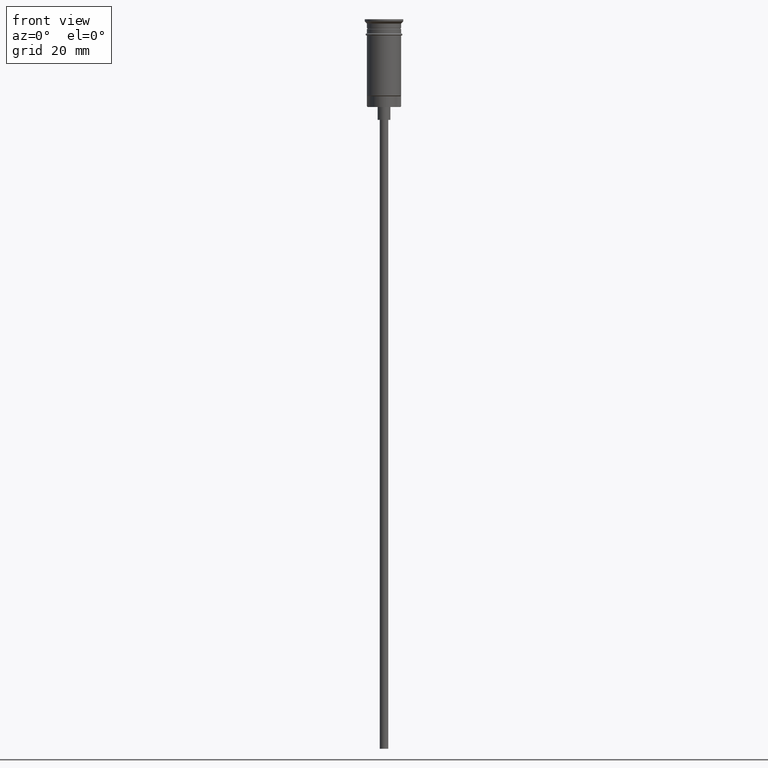
[diagram: clean part render]
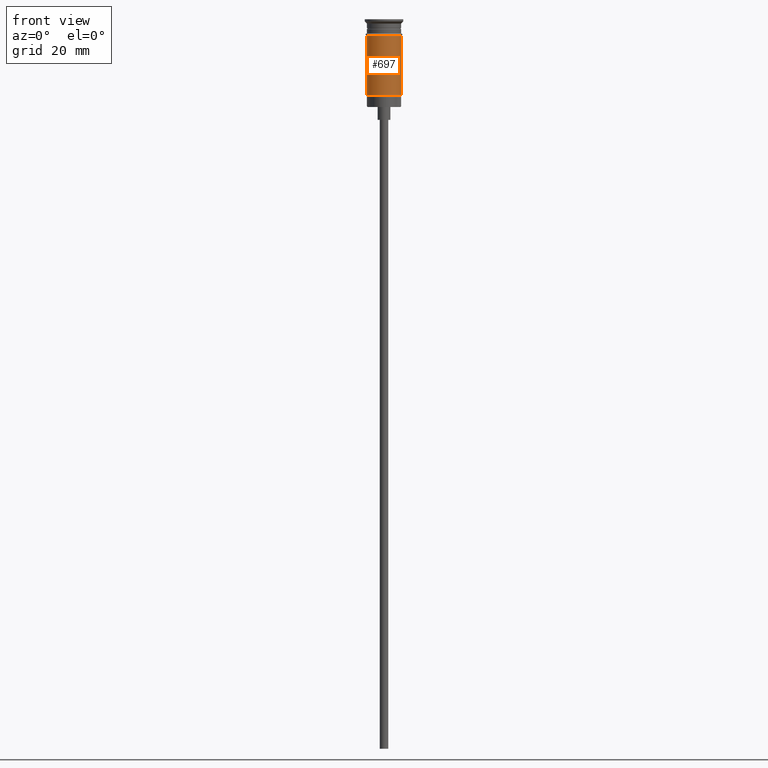
[diagram: same view with one face highlighted and labeled with its STEP entity id]
A machine part, front view. The second image highlights one B-rep face of the part: STEP entity #697.
In plain terms, the highlighted cylindrical surface (edge-blend (fillet) strip) has radius 4 mm, axis along (-0, -0, 1).
Its self-contained STEP definition (entity closure, byte-faithful):
#46 = CIRCLE ( 'NONE', #770, 4.000000000000000000 ) ;
#56 = DIRECTION ( 'NONE',  ( -0.000000000000000000, -0.000000000000000000, 1.000000000000000000 ) ) ;
#133 = DIRECTION ( 'NONE',  ( -1.000000000000000000, 0.000000000000000000, 0.000000000000000000 ) ) ;
#134 = VERTEX_POINT ( 'NONE', #1245 ) ;
#153 = VERTEX_POINT ( 'NONE', #1065 ) ;
#182 = CARTESIAN_POINT ( 'NONE',  ( 0.000000000000000000, 0.000000000000000000, 0.000000000000000000 ) ) ;
#220 = AXIS2_PLACEMENT_3D ( 'NONE', #182, #56, #317 ) ;
#237 = CARTESIAN_POINT ( 'NONE',  ( 0.000000000000000000, 0.000000000000000000, -3.799999999999998490 ) ) ;
#240 = EDGE_LOOP ( 'NONE', ( #1251, #664, #255, #620 ) ) ;
#255 = ORIENTED_EDGE ( 'NONE', *, *, #326, .T. ) ;
#293 = LINE ( 'NONE', #1035, #1498 ) ;
#311 = EDGE_CURVE ( 'NONE', #153, #1029, #673, .T. ) ;
#314 = DIRECTION ( 'NONE',  ( -0.000000000000000000, -0.000000000000000000, 1.000000000000000000 ) ) ;
#317 = DIRECTION ( 'NONE',  ( 1.000000000000000000, 0.000000000000000000, 0.000000000000000000 ) ) ;
#326 = EDGE_CURVE ( 'NONE', #134, #475, #293, .T. ) ;
#395 = VECTOR ( 'NONE', #1156, 1000.000000000000000 ) ;
#475 = VERTEX_POINT ( 'NONE', #607 ) ;
#596 = EDGE_CURVE ( 'NONE', #1029, #475, #1463, .T. ) ;
#604 = EDGE_CURVE ( 'NONE', #153, #134, #46, .T. ) ;
#607 = CARTESIAN_POINT ( 'NONE',  ( 4.000000000000000000, 0.000000000000000000, -3.799999999999998490 ) ) ;
#620 = ORIENTED_EDGE ( 'NONE', *, *, #596, .F. ) ;
#664 = ORIENTED_EDGE ( 'NONE', *, *, #604, .T. ) ;
#673 = LINE ( 'NONE', #680, #395 ) ;
#680 = CARTESIAN_POINT ( 'NONE',  ( -4.000000000000000000, 4.898587196589412829E-16, 0.000000000000000000 ) ) ;
#697 = ADVANCED_FACE ( 'NONE', ( #1388 ), #1425, .T. ) ;
#734 = DIRECTION ( 'NONE',  ( 1.000000000000000000, 0.000000000000000000, 0.000000000000000000 ) ) ;
#770 = AXIS2_PLACEMENT_3D ( 'NONE', #880, #1354, #133 ) ;
#880 = CARTESIAN_POINT ( 'NONE',  ( 0.000000000000000000, 0.000000000000000000, -17.79999999999998295 ) ) ;
#1029 = VERTEX_POINT ( 'NONE', #1113 ) ;
#1035 = CARTESIAN_POINT ( 'NONE',  ( 4.000000000000000000, 0.000000000000000000, 0.000000000000000000 ) ) ;
#1065 = CARTESIAN_POINT ( 'NONE',  ( -3.999999999999997335, 0.000000000000000000, -17.79999999999998295 ) ) ;
#1102 = DIRECTION ( 'NONE',  ( -0.000000000000000000, -0.000000000000000000, 1.000000000000000000 ) ) ;
#1113 = CARTESIAN_POINT ( 'NONE',  ( -4.000000000000000000, 4.898587196589412829E-16, -3.799999999999998490 ) ) ;
#1156 = DIRECTION ( 'NONE',  ( -0.000000000000000000, -0.000000000000000000, 1.000000000000000000 ) ) ;
#1245 = CARTESIAN_POINT ( 'NONE',  ( 4.000000000000000000, 4.898587196589412829E-16, -17.79999999999998295 ) ) ;
#1251 = ORIENTED_EDGE ( 'NONE', *, *, #311, .F. ) ;
#1354 = DIRECTION ( 'NONE',  ( -0.000000000000000000, -0.000000000000000000, 1.000000000000000000 ) ) ;
#1360 = AXIS2_PLACEMENT_3D ( 'NONE', #237, #1102, #734 ) ;
#1388 = FACE_OUTER_BOUND ( 'NONE', #240, .T. ) ;
#1425 = CYLINDRICAL_SURFACE ( 'NONE', #220, 4.000000000000000000 ) ;
#1463 = CIRCLE ( 'NONE', #1360, 4.000000000000000000 ) ;
#1498 = VECTOR ( 'NONE', #314, 1000.000000000000000 ) ;